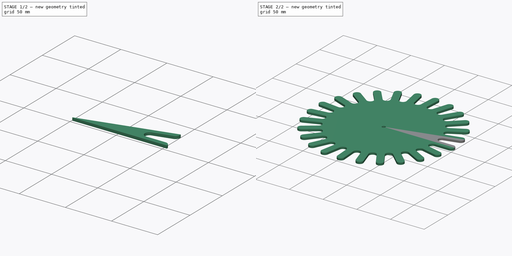
[diagram: build sequence overview — one tinted view per stage of 2, left to right]
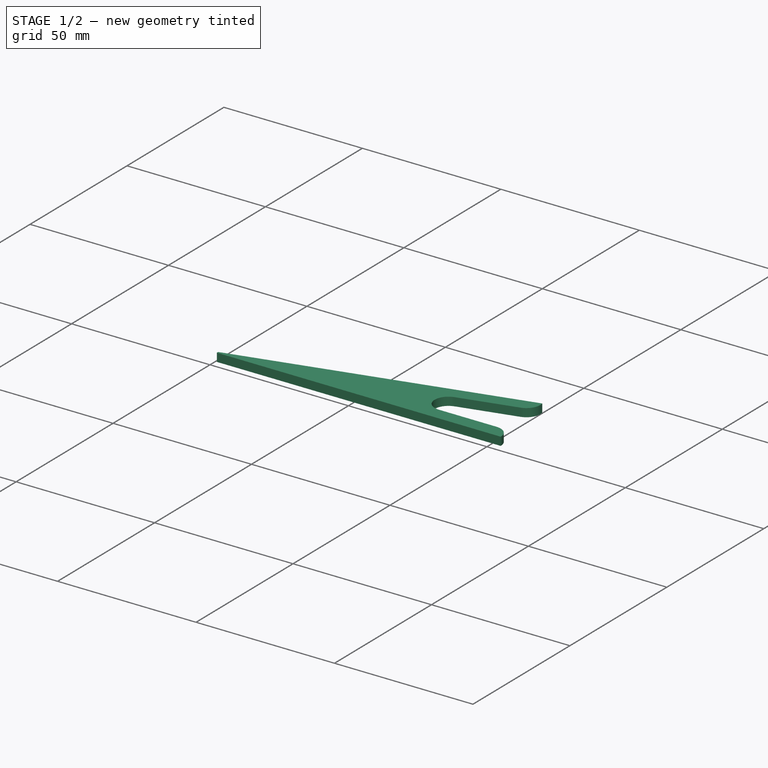
[diagram: stage 1 of 2 — iso view after this stage's code; geometry added in this stage tinted green]
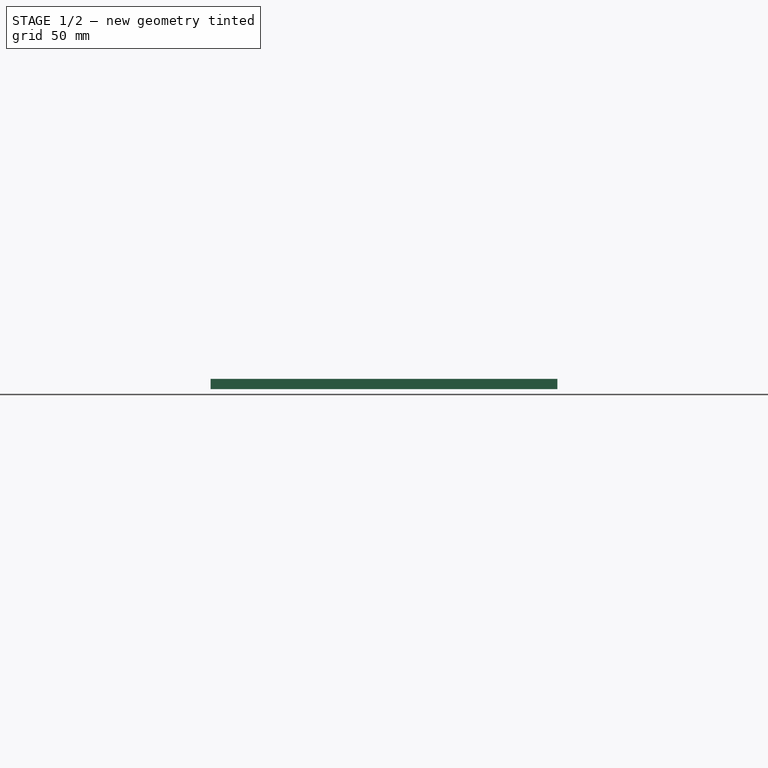
[diagram: stage 1 of 2 — front view after this stage's code; geometry added in this stage tinted green]
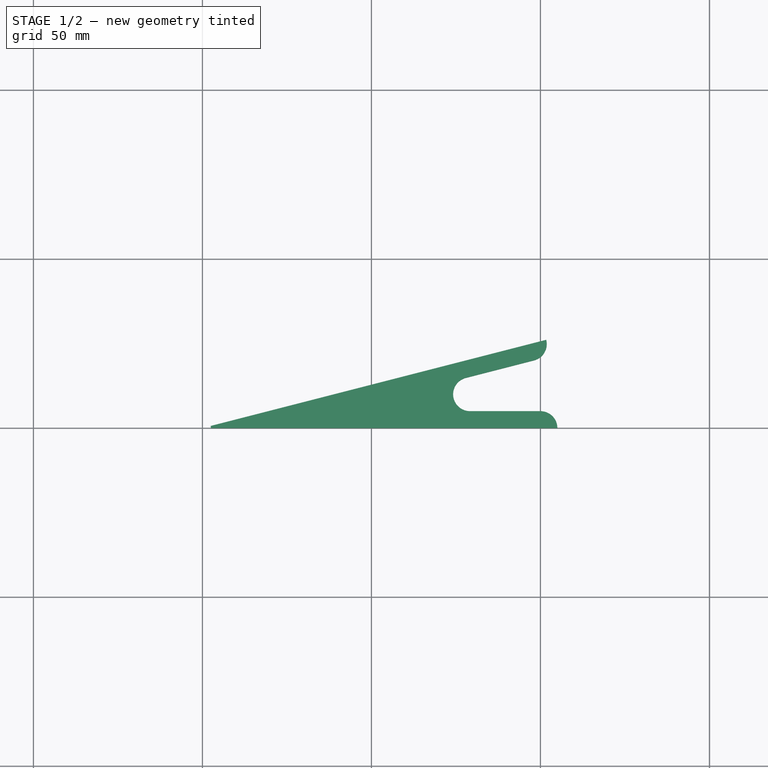
[diagram: stage 1 of 2 — top view after this stage's code; geometry added in this stage tinted green]
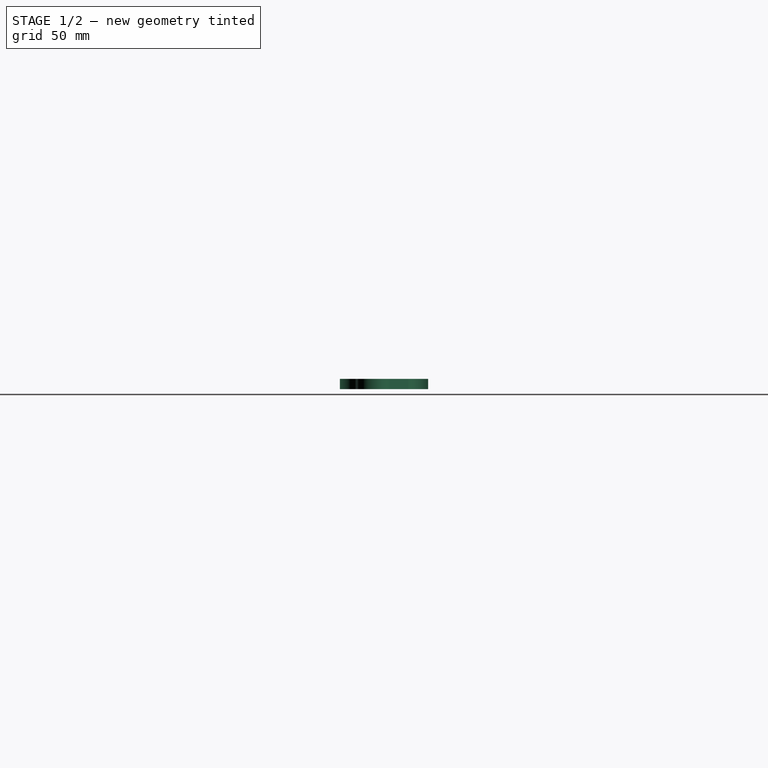
[diagram: stage 1 of 2 — right view after this stage's code; geometry added in this stage tinted green]
FCSTD DOCUMENT  (FreeCAD 0.21R33771 (Git))
Label: SFT-Mk5-Rotor
License: Public Domain
LicenseURL: https://en.wikipedia.org/wiki/Public_domain
objects: PartDesign::CoordinateSystem×1, Sketcher::SketchObject×1, Part::Extrusion×1, Part::FeaturePython×1, App::Part×1
note: 4 computed .brp shape members not serialized (recipe doc carries the construction recipe); baked Part::Feature solids carry a one-line shape summary decoded from their .brp

FEATURE [PartDesign::CoordinateSystem] LCS_Origin  label="Axle AP"
  AttacherType = Attacher::AttachEngine3D
  AttachmentOffset = pos=(0,0,0) rot=(0,0,1;0.174533rad)
  MapMode = 2
  Placement = pos=(0,0,0) rot=(0,0,1;0.174533rad)
  Support = -> [X_Axis]
FEATURE [Sketcher::SketchObject] Sketch  label="Rotor Segment sketch"
  FullyConstrained = true
  MapMode = 5
  Support = -> [XY_Plane]
  sketch-geometry (8):
    g0: LineSegment StartX=2.5 StartY=0 StartZ=0 EndX=105 EndY=0 EndZ=0
    g1: ArcOfCircle CenterX=100 CenterY=0 CenterZ=0 NormalX=0 NormalY=0 NormalZ=1 AngleXU=0 Radius=5 StartAngle=0 EndAngle=1.5708
    g2: LineSegment StartX=100 StartY=5 StartZ=0 EndX=79.1582 EndY=5 EndZ=0
    g3: LineSegment StartX=2.42146 StartY=0.621713 StartZ=0 EndX=101.701 EndY=26.1124 EndZ=0
    g4: ArcOfCircle CenterX=96.8583 CenterY=24.869 CenterZ=0 NormalX=0 NormalY=0 NormalZ=1 AngleXU=0 Radius=5 StartAngle=4.96372 EndAngle=6.53451
    g5: LineSegment StartX=98.1018 StartY=20.0261 StartZ=0 EndX=77.9148 EndY=14.8429 EndZ=0
    g6: ArcOfCircle CenterX=79.1582 CenterY=10 CenterZ=0 NormalX=0 NormalY=0 NormalZ=1 AngleXU=0 Radius=5 StartAngle=1.82212 EndAngle=4.71239
    g7: ArcOfCircle CenterX=0 CenterY=0 CenterZ=0 NormalX=0 NormalY=0 NormalZ=1 AngleXU=0 Radius=2.5 StartAngle=0 EndAngle=0.251322
  constraints (23):
    c: Horizontal(g0)
    c: PointOnObject(g1,g0)
    c: Radius(g1) = 5
    c: Horizontal(g2)
    c: Tangent(g2,g1) = -1.5708
    c: Angle(g0,g3) = 0.251327
    c: PointOnObject(g4,g3)
    c: Coincident(g4,g3)
    c: Parallel(g5,g3)
    c: Equal(g4,g1)
    c: Tangent(g6,g2) = 1.5708
    c: Tangent(g6,g5) = -1.5708
    c: Tangent(g5,g4) = 1.5708
    c: Coincident(g1,g0)
    c: Coincident(g7,g-1)
    c: PointOnObject(g7,g-1)
    c: Radius(g7) = 2.5
    c: Coincident(g0,g7)
    c: Coincident(g3,g7)
    c: DistanceX(g1) = 100
    c: Equal(g3,g0)
    c: Equal(g6,g1)
    c: Distance(g4,g7) = 100
FEATURE [Part::Extrusion] Extrude  label="Rotor Segment"
  Base = -> Sketch
  Dir = (0,0,1)
  DirMode = 2
  FaceMakerClass = Part::FaceMakerBullseye
  LengthFwd = 3
  LengthRev = 0
  Solid = true
  Symmetric = true
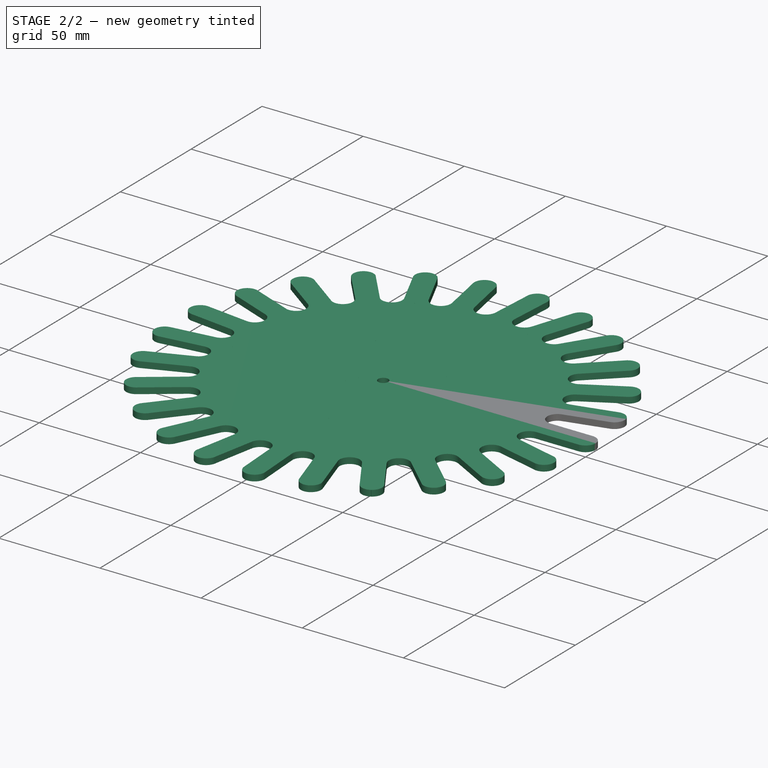
[diagram: stage 2 of 2 — iso view after this stage's code; geometry added in this stage tinted green]
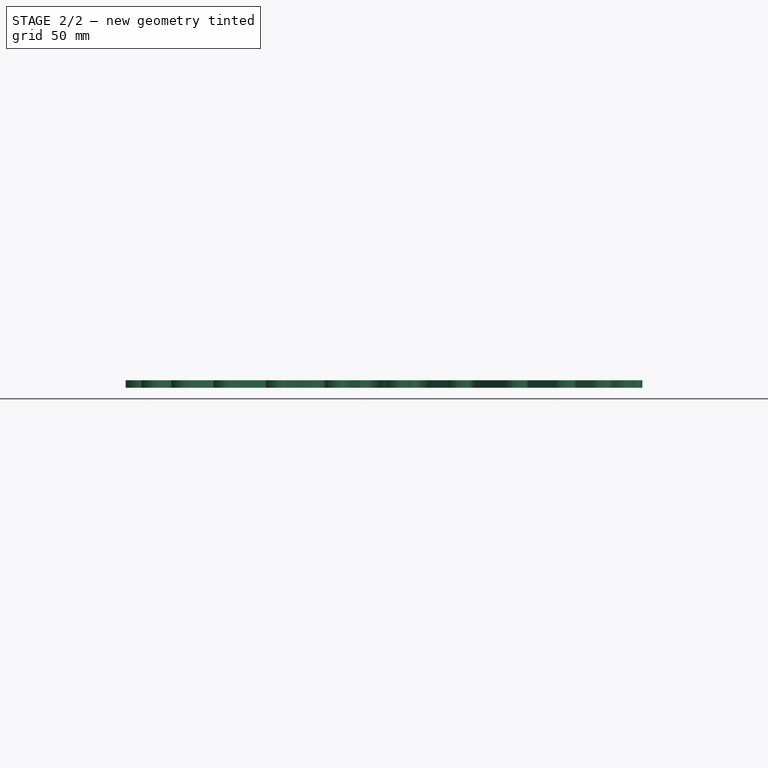
[diagram: stage 2 of 2 — front view after this stage's code; geometry added in this stage tinted green]
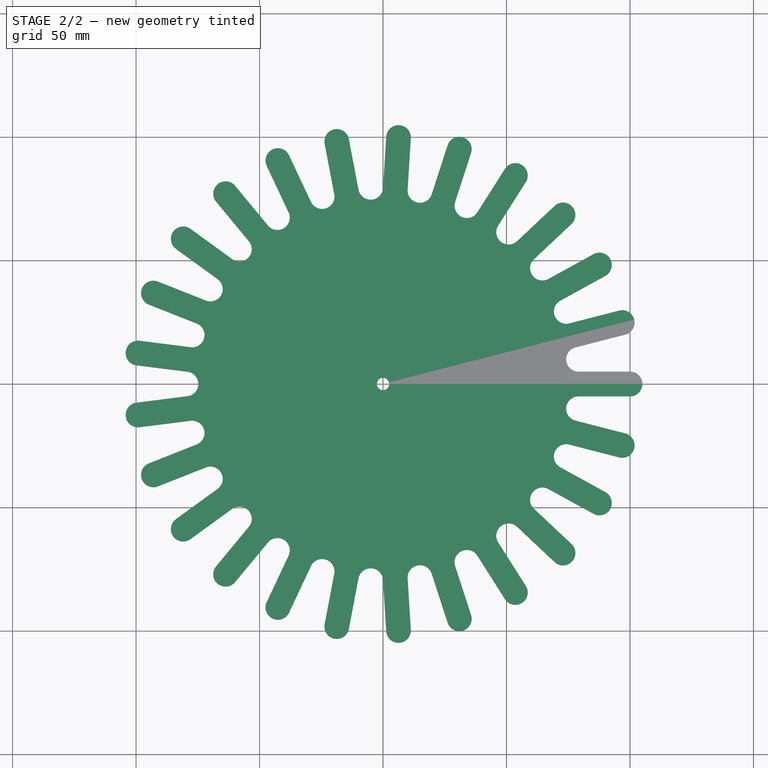
[diagram: stage 2 of 2 — top view after this stage's code; geometry added in this stage tinted green]
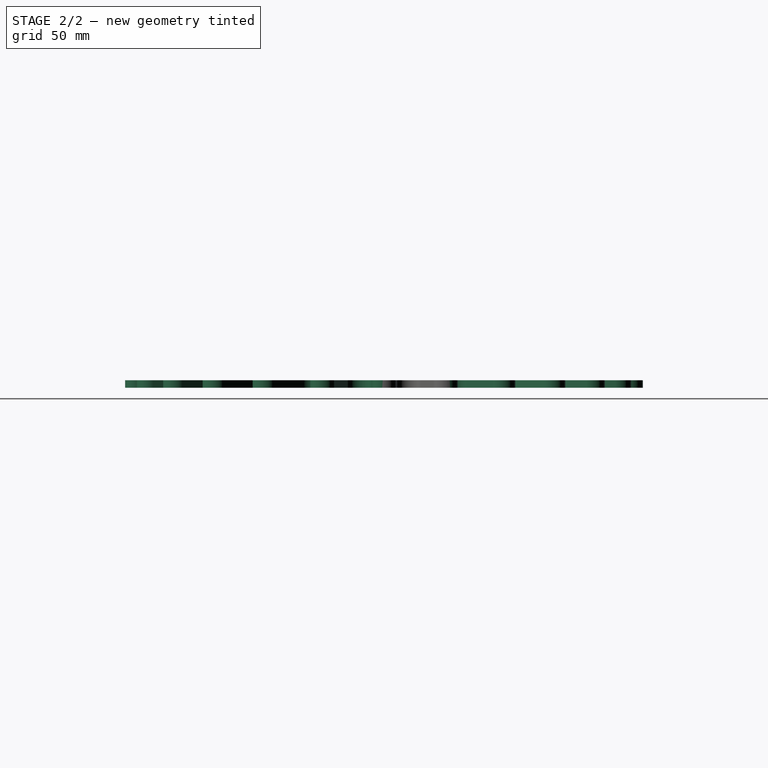
[diagram: stage 2 of 2 — right view after this stage's code; geometry added in this stage tinted green]
FEATURE [Part::FeaturePython] Array  # Draft array (typed FeaturePython)
  Angle = 360
  ArrayType = 1
  Axis = (0,0,1)
  Base = -> Extrude
  Center = (0,0,0)
  Count = 25
  Fuse = true
  IntervalAxis = (0,0,0)
  IntervalX = (50,0,0)
  IntervalY = (0,50,0)
  IntervalZ = (0,0,50)
  NumberCircles = 3
  NumberPolar = 25
  NumberX = 2
  NumberY = 2
  NumberZ = 1
  RadialDistance = 50
  Symmetry = 1
  TangentialDistance = 25
FEATURE [App::Part] Rotor
  Group = -> [LCS_Origin,Sketch,Extrude,Array]
  Origin = -> Origin
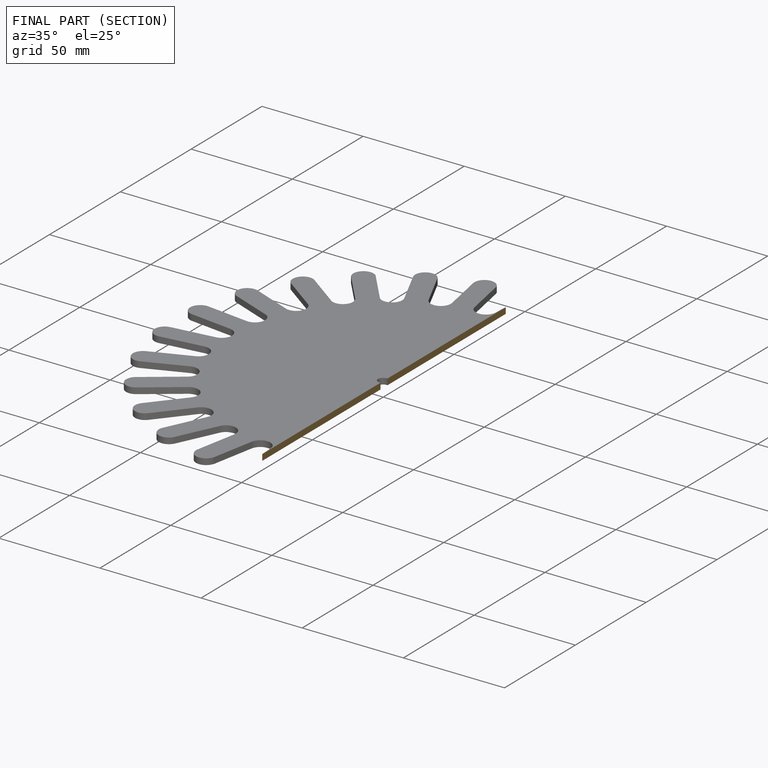
[diagram: finished part — half-section view (interior)]
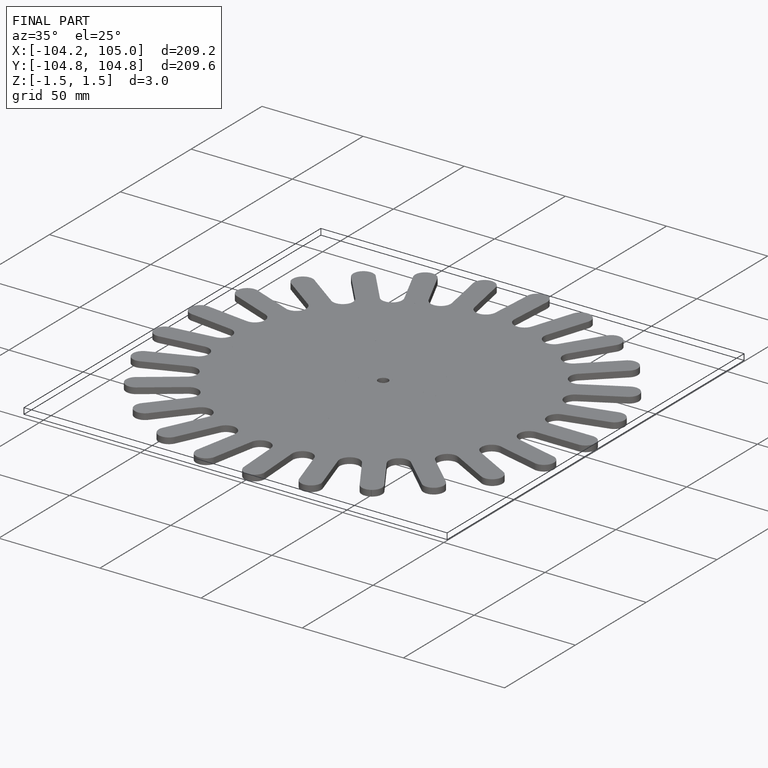
[diagram: finished part — iso view with bounding-box wireframe]
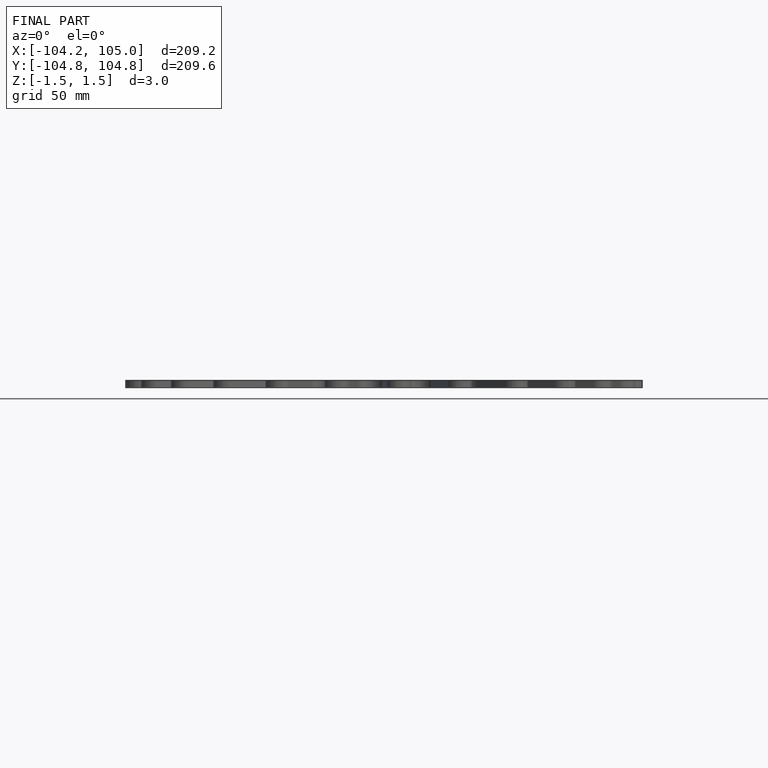
[diagram: finished part — front view with bounding-box wireframe]
